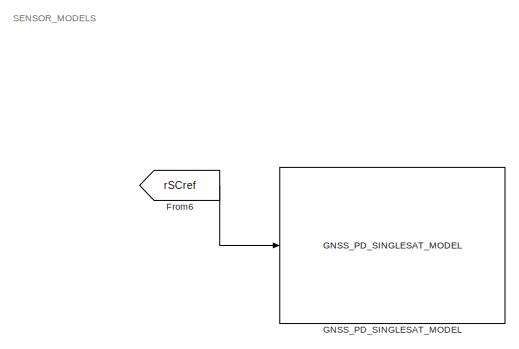
[diagram: root canvas - part 1/5, top right region]
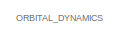
[diagram: root canvas - part 2/5, top left region]
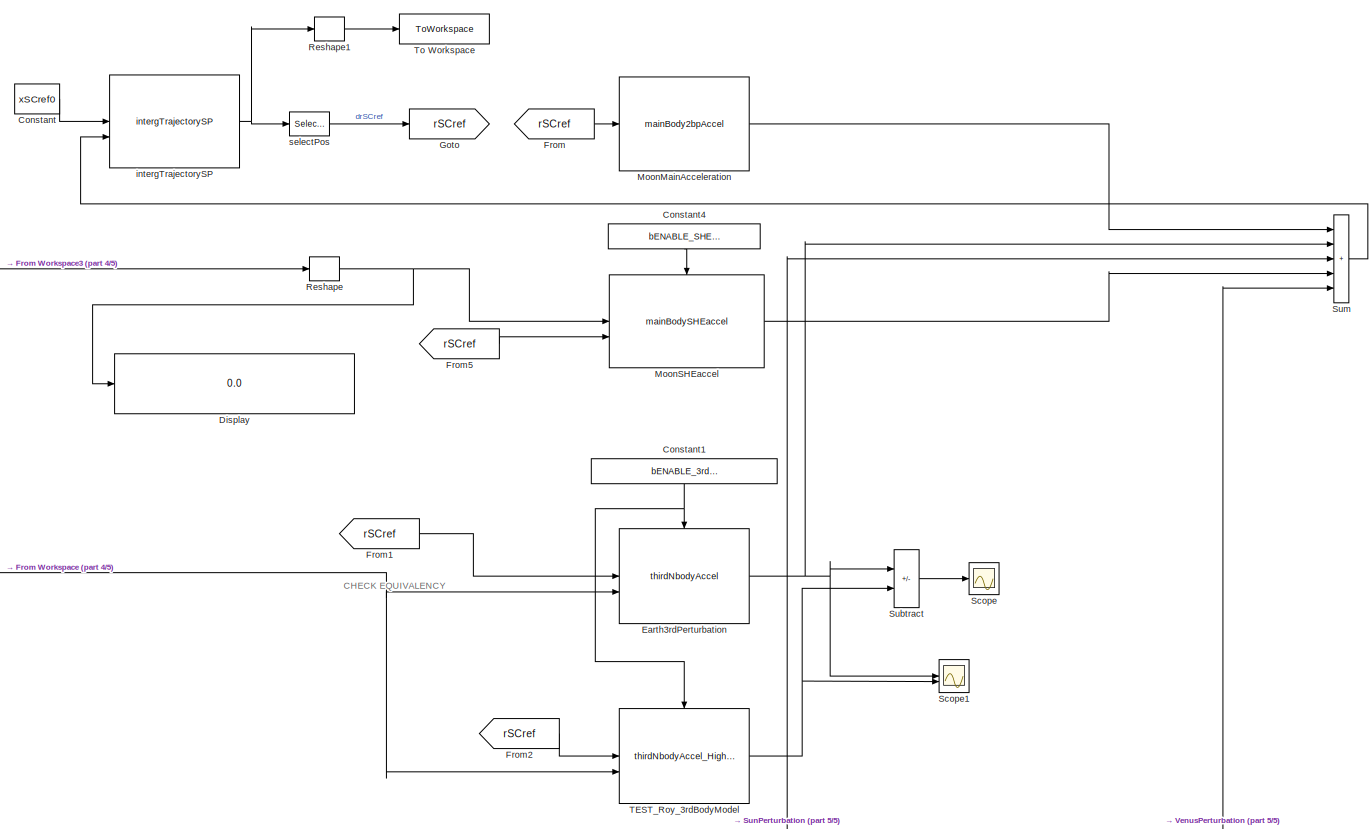
[diagram: root canvas - part 3/5, central region]
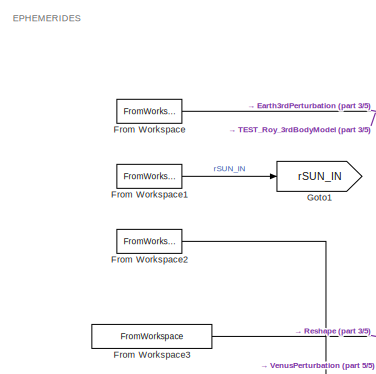
[diagram: root canvas - part 4/5, top left region]
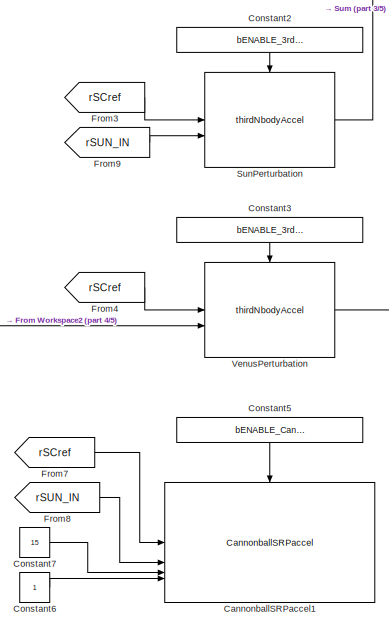
[diagram: root canvas - part 5/5, bottom center region]
MODEL slx_49589ecec6eb
KIND model
CONFIG AbsTol = 1e-13
CONFIG EnableMultiTasking = off
CONFIG FixedStep = 1
CONFIG MaxStep = auto
CONFIG MinStep = auto
CONFIG RelTol = 1e-13
CONFIG SampleTimeConstraint = Unconstrained
CONFIG SolverName = ode113
CONFIG StartTime = 0.0
CONFIG StopTime = 1000
BLOCK [Reference] CannonballSRPaccel1  REF=orbitalModelsLib/CannonballSRPaccel
  Commented = on
  SourceBlock = orbitalModelsLib/CannonballSRPaccel
  SourceProductName = orbitalModelsLib
BLOCK [Constant] Constant
  Value = xSCref0
BLOCK [Constant] Constant1
  NameLocation = left
  OutDataTypeStr = boolean
  Value = bENABLE_3rdBodyAccel_EARTH
BLOCK [Constant] Constant2
  NameLocation = left
  OutDataTypeStr = boolean
  Value = bENABLE_3rdBodyAccel_SUN
BLOCK [Constant] Constant3
  Commented = on
  NameLocation = left
  OutDataTypeStr = boolean
  Value = bENABLE_3rdBodyAccel_VENUS
BLOCK [Constant] Constant4
  NameLocation = left
  OutDataTypeStr = boolean
  Value = bENABLE_SHE_MOON
BLOCK [Constant] Constant5
  Commented = on
  NameLocation = left
  OutDataTypeStr = boolean
  Value = bENABLE_CannonBallSRPaccel
BLOCK [Constant] Constant6
  Commented = on
BLOCK [Constant] Constant7
  Commented = on
  Value = 15
BLOCK [Display] Display
  Decimation = 1
BLOCK [Reference] Earth3rdPerturbation  REF=orbitalModelsLib/thirdNbodyAccel
  SourceBlock = orbitalModelsLib/thirdNbodyAccel
  SourceProductName = orbitalModelsLib
BLOCK [From] From
  GotoTag = rSCref
BLOCK [FromWorkspace] From Workspace
  OutputAfterFinalValue = Holding final value
  VariableName = EARTH_EPH
BLOCK [FromWorkspace] From Workspace1
  OutputAfterFinalValue = Holding final value
  VariableName = SUN_EPH
BLOCK [FromWorkspace] From Workspace2
  Commented = on
  OutputAfterFinalValue = Holding final value
  VariableName = VENUS_EPH
BLOCK [FromWorkspace] From Workspace3
  Interpolate = off
  OutputAfterFinalValue = Holding final value
  VariableName = dDCM_Moon_fromTBtoIN_SLX
BLOCK [From] From1
  GotoTag = rSCref
BLOCK [From] From2
  GotoTag = rSCref
BLOCK [From] From3
  GotoTag = rSCref
BLOCK [From] From4
  Commented = on
  GotoTag = rSCref
BLOCK [From] From5
  GotoTag = rSCref
BLOCK [From] From6
  Commented = on
  GotoTag = rSCref
BLOCK [From] From7
  Commented = on
  GotoTag = rSCref
BLOCK [From] From8
  Commented = on
  GotoTag = rSUN_IN
BLOCK [From] From9
  GotoTag = rSUN_IN
BLOCK [Reference] GNSS_PD_SINGLESAT_MODEL  REF=sensorsModelsLib/GNSS_PD_SINGLESAT_MODEL
  Commented = on
  SourceBlock = sensorsModelsLib/GNSS_PD_SINGLESAT_MODEL
BLOCK [Goto] Goto
  GotoTag = rSCref
BLOCK [Goto] Goto1
  GotoTag = rSUN_IN
BLOCK [Reference] MoonMainAcceleration  REF=orbitalModelsLib/mainBody2bpAccel
  SourceBlock = orbitalModelsLib/mainBody2bpAccel
  SourceProductName = orbitalModelsLib
BLOCK [Reference] MoonSHEaccel  REF=orbitalModelsLib/mainBodySHEaccel
  SourceBlock = orbitalModelsLib/mainBodySHEaccel
  SourceProductName = orbitalModelsLib
BLOCK [Reshape] Reshape
  OutputDimensionality = Customize
  OutputDimensions = [3, 3]
BLOCK [Reshape] Reshape1
BLOCK [Scope] Scope
  Floating = off
  NumInputPorts = 1
  ScopeSpecificationString = Simulink.scopes.TimeScopeBlockCfg('CurrentConfiguration', extmgr.ConfigurationSet(extmgr.Configuration('Core','General UI',true),extmgr.Configuration('Core','Source UI',true),extmgr.Configuration('Sources','WiredSimulink',true),extmgr.Configuration('Visuals','Time Domain',true,'SerializedDisplays',{struct('MinYLimReal','-0.000000037','MaxYLimReal','0.000000036','YLabelReal','','MinYLimMag','0.0000...<+1388ch>
BLOCK [Scope] Scope1
  Floating = off
  NumInputPorts = 2
  ScopeSpecificationString = Simulink.scopes.TimeScopeBlockCfg('CurrentConfiguration', extmgr.ConfigurationSet(extmgr.Configuration('Core','General UI',true),extmgr.Configuration('Core','Source UI',true),extmgr.Configuration('Sources','WiredSimulink',true,'DataLoggingVariableName','ScopeData1'),extmgr.Configuration('Visuals','Time Domain',true,'SerializedDisplays',{struct('MinYLimReal','-0.000000037','MaxYLimReal','0.00000003...<+2189ch>
BLOCK [Sum] Subtract
  IconShape = rectangular
  Inputs = +-
BLOCK [Sum] Sum
  IconShape = rectangular
  Inputs = +++++
BLOCK [Reference] SunPerturbation  REF=orbitalModelsLib/thirdNbodyAccel
  SourceBlock = orbitalModelsLib/thirdNbodyAccel
  SourceProductName = orbitalModelsLib
BLOCK [Reference] TEST_Roy_3rdBodyModel  REF=orbitalModelsLib/thirdNbodyAccel_HighAccuracy
  SourceBlock = orbitalModelsLib/thirdNbodyAccel_HighAccuracy
  SourceProductName = orbitalModelsLib
BLOCK [ToWorkspace] To Workspace
  FixptAsFi = on
  MaxDataPoints = inf
  SampleTime = 1
  SaveFormat = Timeseries
  VariableName = xStateRef
BLOCK [Reference] VenusPerturbation  REF=orbitalModelsLib/thirdNbodyAccel
  Commented = on
  SourceBlock = orbitalModelsLib/thirdNbodyAccel
  SourceProductName = orbitalModelsLib
BLOCK [Reference] intergTrajectorySP  REF=orbitalModelsLib/intergTrajectorySP
  SourceBlock = orbitalModelsLib/intergTrajectorySP
  SourceProductName = orbitalModelsLib
  SourceType = SubSystem
BLOCK [Selector] selectPos
  IndexOptions = Index vector (dialog)
  Indices = [1:3]
  InputPortWidth = 6
  OutputSizes = 1
ANNOTATION (root): CHECK EQUIVALENCY
ANNOTATION (root): EPHEMERIDES
ANNOTATION (root): ORBITAL_DYNAMICS
ANNOTATION (root): SENSOR_MODELS
NET Constant1:1 -> Earth3rdPerturbation:enable, TEST_Roy_3rdBodyModel:enable
LINE Constant2:1 -> SunPerturbation:enable
LINE Constant3:1 -> VenusPerturbation:enable
LINE Constant4:1 -> MoonSHEaccel:enable
LINE Constant5:1 -> CannonballSRPaccel1:enable
LINE Constant6:1 -> CannonballSRPaccel1:4
LINE Constant7:1 -> CannonballSRPaccel1:3
LINE Constant:1 -> intergTrajectorySP:1
NET Earth3rdPerturbation:1 -> Scope1:1, Subtract:1, Sum:2
LINE From Workspace1:1 -> Goto1:1
LINE From Workspace2:1 -> VenusPerturbation:2
LINE From Workspace3:1 -> Reshape:1
NET From Workspace:1 -> Earth3rdPerturbation:2, TEST_Roy_3rdBodyModel:2
LINE From1:1 -> Earth3rdPerturbation:1
LINE From2:1 -> TEST_Roy_3rdBodyModel:1
LINE From3:1 -> SunPerturbation:1
LINE From4:1 -> VenusPerturbation:1
LINE From5:1 -> MoonSHEaccel:2
LINE From6:1 -> GNSS_PD_SINGLESAT_MODEL:1
LINE From7:1 -> CannonballSRPaccel1:1
LINE From8:1 -> CannonballSRPaccel1:2
LINE From9:1 -> SunPerturbation:2
LINE From:1 -> MoonMainAcceleration:1
LINE MoonMainAcceleration:1 -> Sum:1
LINE MoonSHEaccel:1 -> Sum:4
LINE Reshape1:1 -> To Workspace:1
NET Reshape:1 -> Display:1, MoonSHEaccel:1
LINE Subtract:1 -> Scope:1
LINE Sum:1 -> intergTrajectorySP:2
LINE SunPerturbation:1 -> Sum:3
NET TEST_Roy_3rdBodyModel:1 -> Scope1:2, Subtract:2
LINE VenusPerturbation:1 -> Sum:5
NET intergTrajectorySP:1 -> Reshape1:1, selectPos:1
LINE selectPos:1 -> Goto:1
note: NET lines group one-source signal fan-out (src -> all destinations, sorted); 1:1 wires keep LINE
